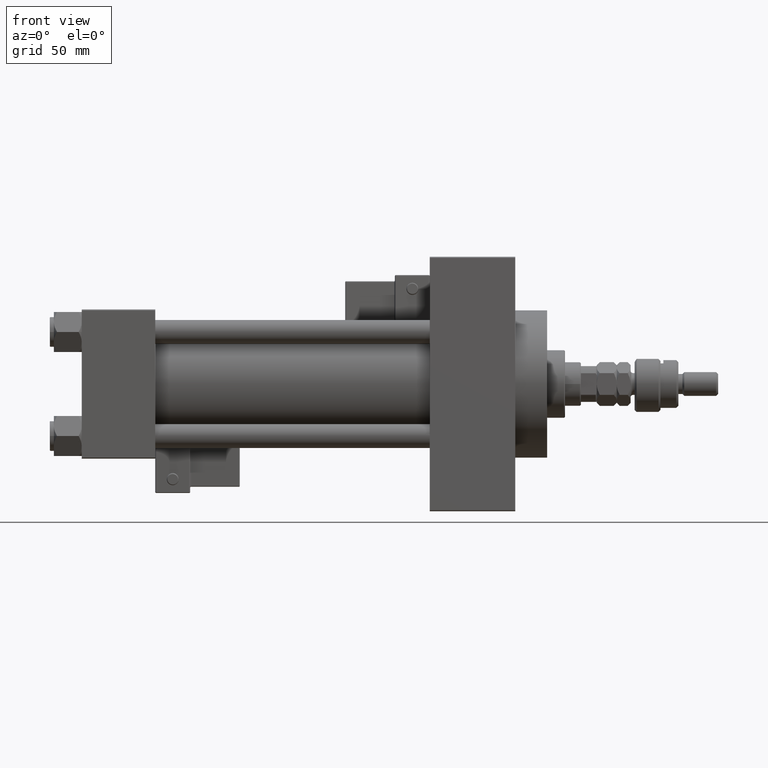
[diagram: clean part render]
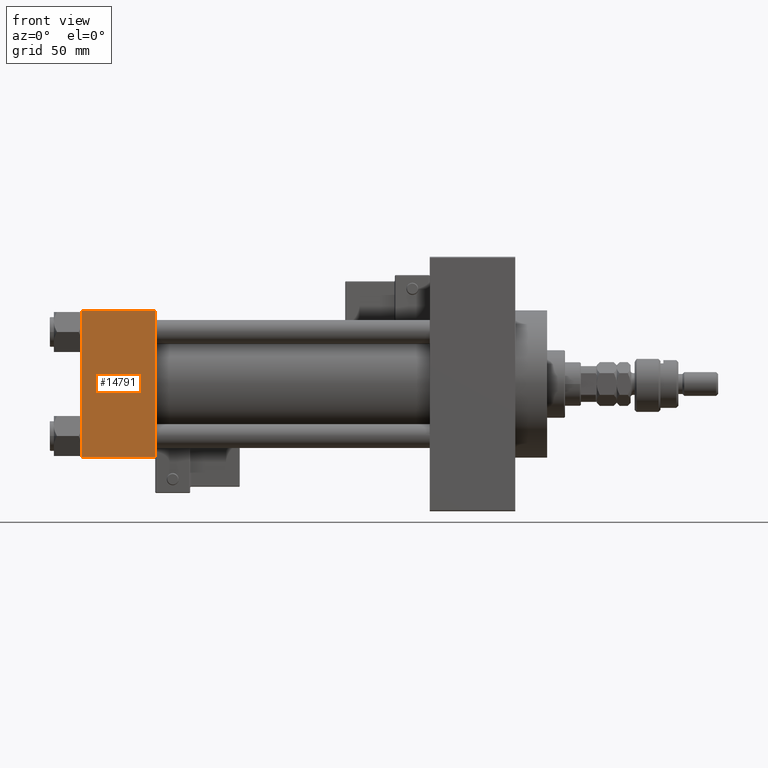
[diagram: same view with one face highlighted and labeled with its STEP entity id]
A machine part, front view. The second image highlights one B-rep face of the part: STEP entity #14791.
In plain terms, the highlighted planar face has unit normal (0, 1, 0).
Its self-contained STEP definition (entity closure, byte-faithful):
#751 = ORIENTED_EDGE ( 'NONE', *, *, #48407, .T. ) ;
#1736 = EDGE_CURVE ( 'NONE', #11696, #49981, #6208, .T. ) ;
#3210 = CARTESIAN_POINT ( 'NONE',  ( 37.00000000000000000, -37.50000000000000711, 37.49999999999999289 ) ) ;
#3473 = DIRECTION ( 'NONE',  ( 0.000000000000000000, -9.251858538542971581E-17, 1.000000000000000000 ) ) ;
#5446 = VECTOR ( 'NONE', #51879, 1000.000000000000000 ) ;
#6208 = LINE ( 'NONE', #9665, #50546 ) ;
#9665 = CARTESIAN_POINT ( 'NONE',  ( 37.00000000000000000, -37.50000000000000711, 36.99999999999999289 ) ) ;
#10105 = LINE ( 'NONE', #18065, #47026 ) ;
#11696 = VERTEX_POINT ( 'NONE', #32150 ) ;
#14101 = DIRECTION ( 'NONE',  ( 0.000000000000000000, 9.251858538542971581E-17, -1.000000000000000000 ) ) ;
#14441 = DIRECTION ( 'NONE',  ( -1.000000000000000000, 0.000000000000000000, 0.000000000000000000 ) ) ;
#14791 = ADVANCED_FACE ( 'NONE', ( #36411 ), #51498, .F. ) ;
#15583 = VERTEX_POINT ( 'NONE', #29768 ) ;
#16150 = CARTESIAN_POINT ( 'NONE',  ( 0.000000000000000000, -37.50000000000000000, -37.00000000000003553 ) ) ;
#18065 = CARTESIAN_POINT ( 'NONE',  ( 37.00000000000000000, -37.50000000000000711, 37.49999999999999289 ) ) ;
#19525 = EDGE_CURVE ( 'NONE', #11696, #15583, #10105, .T. ) ;
#24153 = DIRECTION ( 'NONE',  ( -0.000000000000000000, 1.000000000000000000, 9.251858538542971581E-17 ) ) ;
#24589 = ORIENTED_EDGE ( 'NONE', *, *, #19525, .F. ) ;
#27056 = ORIENTED_EDGE ( 'NONE', *, *, #1736, .T. ) ;
#27349 = CARTESIAN_POINT ( 'NONE',  ( 37.00000000000000000, -37.50000000000000000, -37.00000000000003553 ) ) ;
#27606 = EDGE_LOOP ( 'NONE', ( #751, #41885, #24589, #27056 ) ) ;
#29768 = CARTESIAN_POINT ( 'NONE',  ( 37.00000000000000000, -37.50000000000000000, -37.00000000000003553 ) ) ;
#31034 = EDGE_CURVE ( 'NONE', #31241, #15583, #47521, .T. ) ;
#31241 = VERTEX_POINT ( 'NONE', #16150 ) ;
#32150 = CARTESIAN_POINT ( 'NONE',  ( 37.00000000000000000, -37.50000000000000711, 36.99999999999999289 ) ) ;
#32573 = CARTESIAN_POINT ( 'NONE',  ( 0.000000000000000000, -37.50000000000000711, 36.99999999999999289 ) ) ;
#35210 = CARTESIAN_POINT ( 'NONE',  ( 0.000000000000000000, -37.50000000000000711, 37.49999999999999289 ) ) ;
#36411 = FACE_OUTER_BOUND ( 'NONE', #27606, .T. ) ;
#41885 = ORIENTED_EDGE ( 'NONE', *, *, #31034, .T. ) ;
#43538 = DIRECTION ( 'NONE',  ( 1.000000000000000000, 0.000000000000000000, 0.000000000000000000 ) ) ;
#43927 = LINE ( 'NONE', #35210, #5446 ) ;
#45167 = AXIS2_PLACEMENT_3D ( 'NONE', #3210, #24153, #3473 ) ;
#47026 = VECTOR ( 'NONE', #14101, 1000.000000000000000 ) ;
#47521 = LINE ( 'NONE', #27349, #49768 ) ;
#48407 = EDGE_CURVE ( 'NONE', #49981, #31241, #43927, .T. ) ;
#49768 = VECTOR ( 'NONE', #43538, 1000.000000000000000 ) ;
#49981 = VERTEX_POINT ( 'NONE', #32573 ) ;
#50546 = VECTOR ( 'NONE', #14441, 1000.000000000000000 ) ;
#51498 = PLANE ( 'NONE',  #45167 ) ;
#51879 = DIRECTION ( 'NONE',  ( 0.000000000000000000, 9.251858538542971581E-17, -1.000000000000000000 ) ) ;